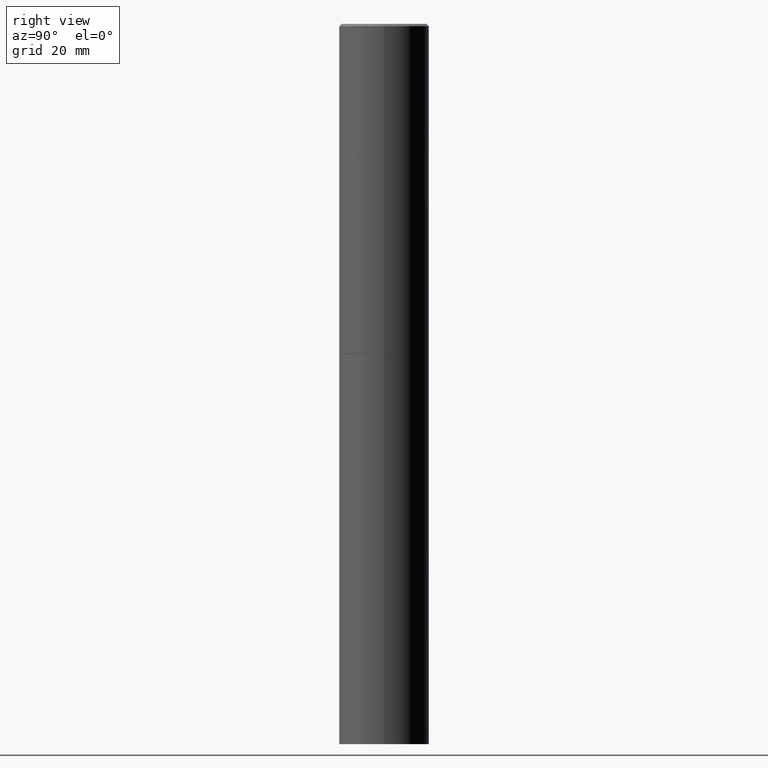
[diagram: clean part render]
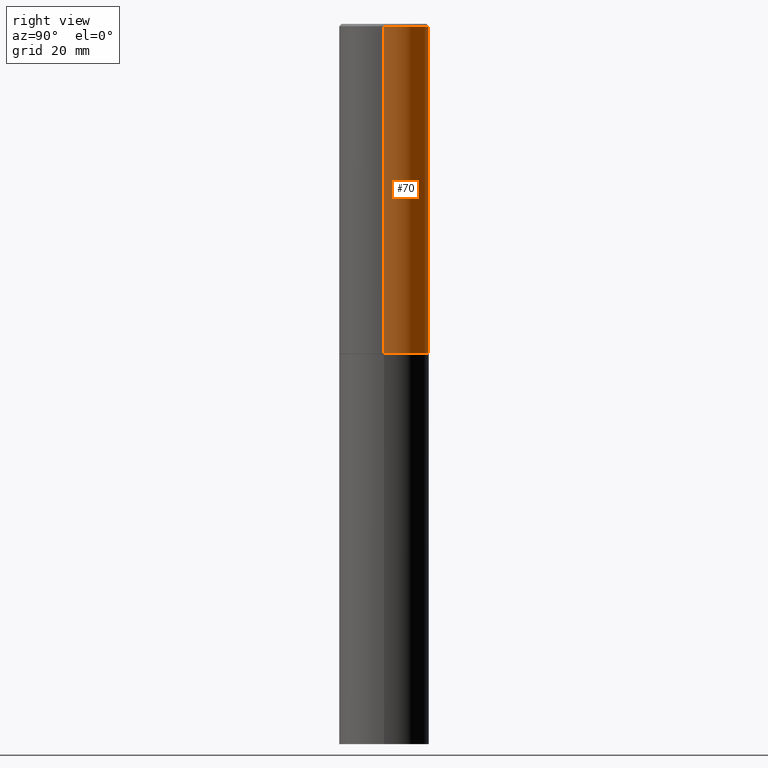
[diagram: same view with one face highlighted and labeled with its STEP entity id]
A machine part, right view. The second image highlights one B-rep face of the part: STEP entity #70.
In plain terms, the highlighted cylindrical surface (partial cylindrical patch) has radius 9.525 mm, axis along (-0, 0, 1).
Its self-contained STEP definition (entity closure, byte-faithful):
#14 = CARTESIAN_POINT ( 'NONE',  ( 6.722593748202942280E-29, -9.598082200479810007E-15, -2.749000000000000554 ) ) ;
#39 = CARTESIAN_POINT ( 'NONE',  ( -0.3749999999999998890, 2.664535259100374908E-15, -1.844600658845589038E-29 ) ) ;
#49 = LINE ( 'NONE', #82, #92 ) ;
#50 = DIRECTION ( 'NONE',  ( -2.445468806185136877E-29, 3.491481338843145188E-15, 1.000000000000000000 ) ) ;
#61 = VERTEX_POINT ( 'NONE', #265 ) ;
#70 = ADVANCED_FACE ( 'NONE', ( #145 ), #301, .T. ) ;
#72 = ORIENTED_EDGE ( 'NONE', *, *, #140, .F. ) ;
#82 = CARTESIAN_POINT ( 'NONE',  ( 0.3749999999999998890, -2.618611004132349228E-15, 1.828566290923475362E-29 ) ) ;
#92 = VECTOR ( 'NONE', #50, 39.37007874015748143 ) ;
#98 = CARTESIAN_POINT ( 'NONE',  ( 0.3750000000000000555, -1.221669320461216002E-14, -2.749000000000000554 ) ) ;
#109 = EDGE_LOOP ( 'NONE', ( #269, #283, #231, #72 ) ) ;
#128 = CARTESIAN_POINT ( 'NONE',  ( -0.3749999999999997780, 2.548781377355484746E-15, -0.02000000000000008021 ) ) ;
#129 = AXIS2_PLACEMENT_3D ( 'NONE', #14, #180, #351 ) ;
#136 = VERTEX_POINT ( 'NONE', #191 ) ;
#138 = CARTESIAN_POINT ( 'NONE',  ( 0.000000000000000000, 0.000000000000000000, 0.000000000000000000 ) ) ;
#139 = VECTOR ( 'NONE', #358, 39.37007874015748143 ) ;
#140 = EDGE_CURVE ( 'NONE', #259, #136, #49, .T. ) ;
#145 = FACE_OUTER_BOUND ( 'NONE', #109, .T. ) ;
#146 = VERTEX_POINT ( 'NONE', #128 ) ;
#180 = DIRECTION ( 'NONE',  ( -2.445468806185136597E-29, 3.491481338843145583E-15, 1.000000000000000000 ) ) ;
#191 = CARTESIAN_POINT ( 'NONE',  ( 0.3749999999999997780, -2.642516375941186056E-15, -0.02000000000000008021 ) ) ;
#209 = DIRECTION ( 'NONE',  ( -2.445468806185136597E-29, 3.491481338843145583E-15, 1.000000000000000000 ) ) ;
#210 = AXIS2_PLACEMENT_3D ( 'NONE', #138, #272, #278 ) ;
#231 = ORIENTED_EDGE ( 'NONE', *, *, #320, .F. ) ;
#256 = EDGE_CURVE ( 'NONE', #259, #61, #289, .T. ) ;
#258 = CIRCLE ( 'NONE', #357, 0.3749999999999997780 ) ;
#259 = VERTEX_POINT ( 'NONE', #98 ) ;
#260 = EDGE_CURVE ( 'NONE', #61, #146, #360, .T. ) ;
#265 = CARTESIAN_POINT ( 'NONE',  ( -0.3750000000000000555, -2.169420654527958195E-15, -2.749000000000000554 ) ) ;
#269 = ORIENTED_EDGE ( 'NONE', *, *, #256, .T. ) ;
#272 = DIRECTION ( 'NONE',  ( -2.445468806185136597E-29, 3.491481338843145583E-15, 1.000000000000000000 ) ) ;
#278 = DIRECTION ( 'NONE',  ( 1.000000000000000000, -6.982962677686266711E-15, 4.876176775795935793E-29 ) ) ;
#283 = ORIENTED_EDGE ( 'NONE', *, *, #260, .T. ) ;
#289 = CIRCLE ( 'NONE', #129, 0.3750000000000000555 ) ;
#301 = CYLINDRICAL_SURFACE ( 'NONE', #210, 0.3749999999999998890 ) ;
#320 = EDGE_CURVE ( 'NONE', #136, #146, #258, .T. ) ;
#323 = DIRECTION ( 'NONE',  ( 1.000000000000000000, -6.982962677686265922E-15, 0.000000000000000000 ) ) ;
#351 = DIRECTION ( 'NONE',  ( 1.000000000000000000, -6.982962677686266711E-15, 0.000000000000000000 ) ) ;
#355 = CARTESIAN_POINT ( 'NONE',  ( 4.890937612370293302E-31, -6.982962677686318726E-17, -0.02000000000000008021 ) ) ;
#357 = AXIS2_PLACEMENT_3D ( 'NONE', #355, #209, #323 ) ;
#358 = DIRECTION ( 'NONE',  ( -2.445468806185136877E-29, 3.491481338843145188E-15, 1.000000000000000000 ) ) ;
#360 = LINE ( 'NONE', #39, #139 ) ;